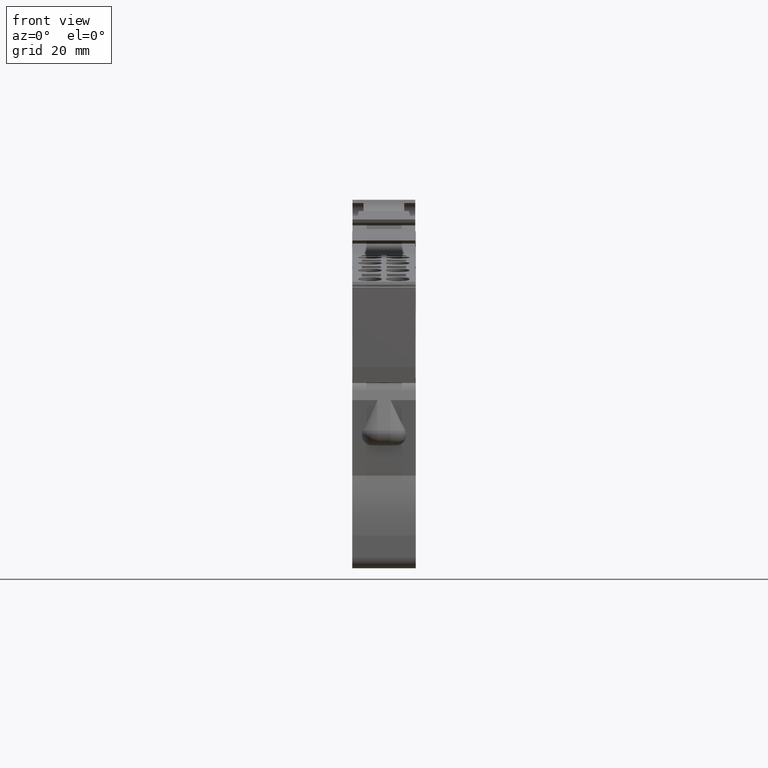
[diagram: clean part render]
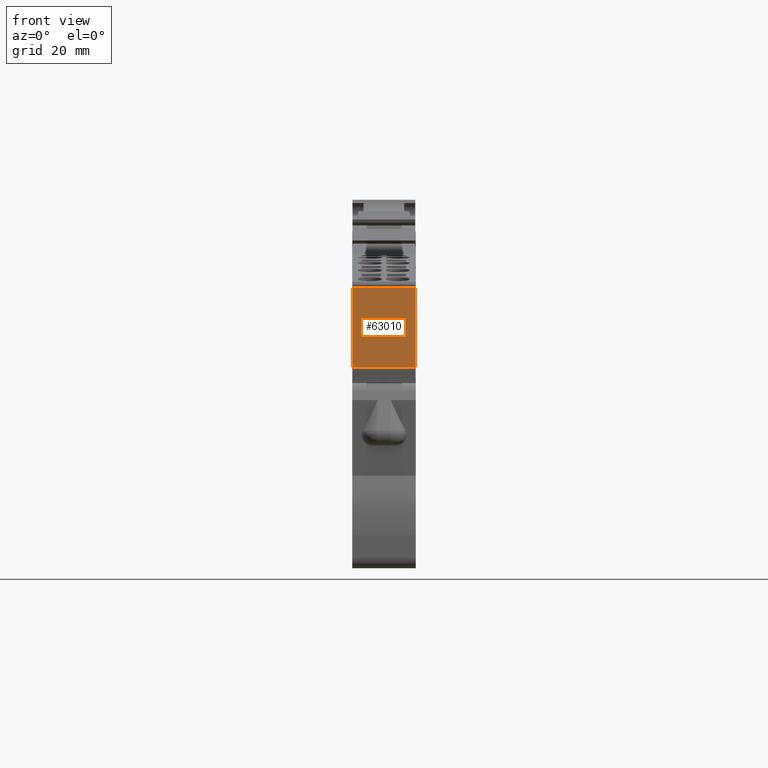
[diagram: same view with one face highlighted and labeled with its STEP entity id]
A machine part, front view. The second image highlights one B-rep face of the part: STEP entity #63010.
In plain terms, the highlighted planar face has unit normal (-0, -1, -0).
Its self-contained STEP definition (entity closure, byte-faithful):
#1890=CARTESIAN_POINT('',(13.1829347668366,52.4942181245001,-35.425));
#1900=VERTEX_POINT('',#1890);
#1930=CARTESIAN_POINT('',(13.1829347668366,60.0230590239077,-35.425));
#1940=DIRECTION('',(8.32667268468867E-17,-1.,-1.38777878078145E-17));
#1950=VECTOR('',#1940,1.);
#1960=LINE('',#1930,#1950);
#1970=CARTESIAN_POINT('',(13.1829347668366,67.701244428714,-35.425));
#1980=VERTEX_POINT('',#1970);
#1990=EDGE_CURVE('',#1980,#1900,#1960,.T.);
#6320=CARTESIAN_POINT('',(13.1829347668366,67.701244428714,-47.425));
#6330=VERTEX_POINT('',#6320);
#6360=CARTESIAN_POINT('',(13.1829347668366,60.0230590239077,-47.425));
#6370=DIRECTION('',(8.32667268468867E-17,-1.,-1.38777878078145E-17));
#6380=VECTOR('',#6370,1.);
#6390=LINE('',#6360,#6380);
#6400=CARTESIAN_POINT('',(13.1829347668366,52.4942181245001,-47.425));
#6410=VERTEX_POINT('',#6400);
#6420=EDGE_CURVE('',#6330,#6410,#6390,.T.);
#62680=CARTESIAN_POINT('',(13.1829347668366,52.4942181245002,-35.425));
#62690=DIRECTION('',(8.85927774418128E-33,0.,-1.));
#62700=VECTOR('',#62690,1.);
#62710=LINE('',#62680,#62700);
#62720=EDGE_CURVE('',#1900,#6410,#62710,.T.);
#62850=CARTESIAN_POINT('',(13.1829347668366,67.701244428714,-35.425));
#62860=DIRECTION('',(-1.,-1.11022302462516E-16,-8.85927774418128E-33));
#62870=DIRECTION('',(-1.11022302462516E-16,1.,0.));
#62880=AXIS2_PLACEMENT_3D('',#62850,#62860,#62870);
#62890=PLANE('',#62880);
#62900=ORIENTED_EDGE('',*,*,#62720,.F.);
#62910=ORIENTED_EDGE('',*,*,#6420,.T.);
#62920=CARTESIAN_POINT('',(13.1829347668366,67.701244428714,-35.425));
#62930=DIRECTION('',(-8.85927774418128E-33,0.,1.));
#62940=VECTOR('',#62930,1.);
#62950=LINE('',#62920,#62940);
#62960=EDGE_CURVE('',#6330,#1980,#62950,.T.);
#62970=ORIENTED_EDGE('',*,*,#62960,.F.);
#62980=ORIENTED_EDGE('',*,*,#1990,.F.);
#62990=EDGE_LOOP('',(#62980,#62970,#62910,#62900));
#63000=FACE_OUTER_BOUND('',#62990,.T.);
#63010=ADVANCED_FACE('',(#63000),#62890,.T.);